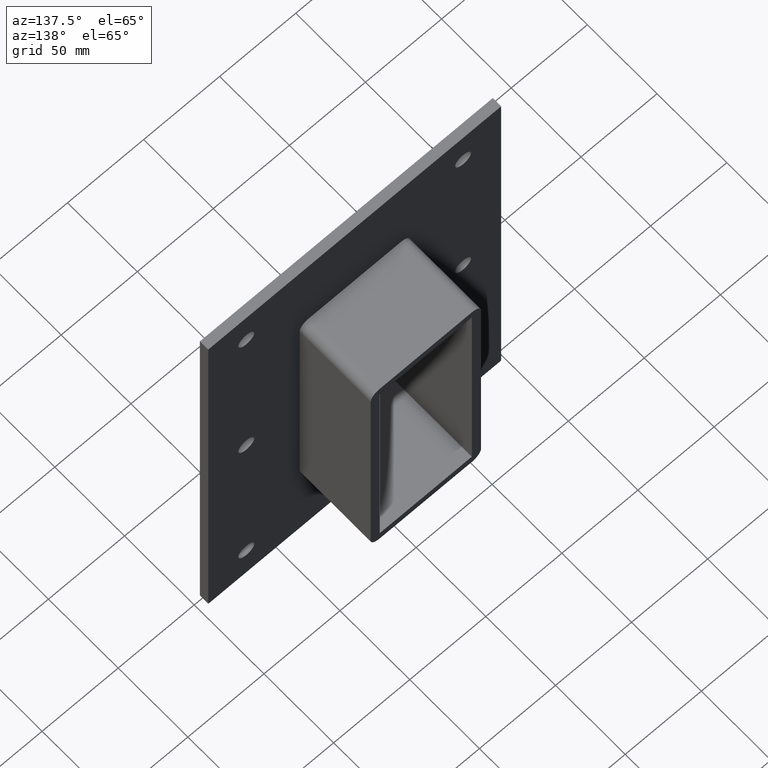
[diagram: clean part render]
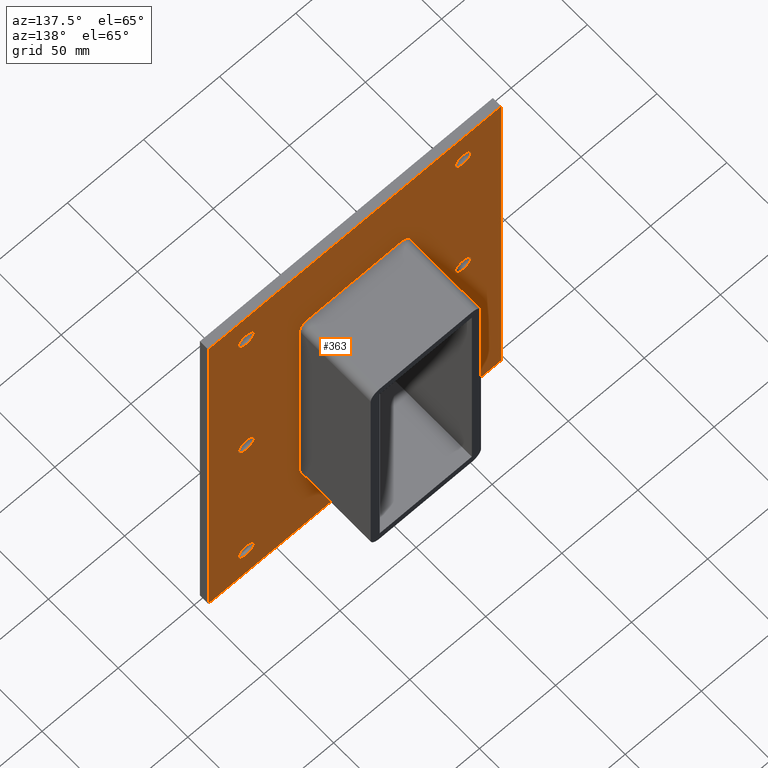
[diagram: same view with one face highlighted and labeled with its STEP entity id]
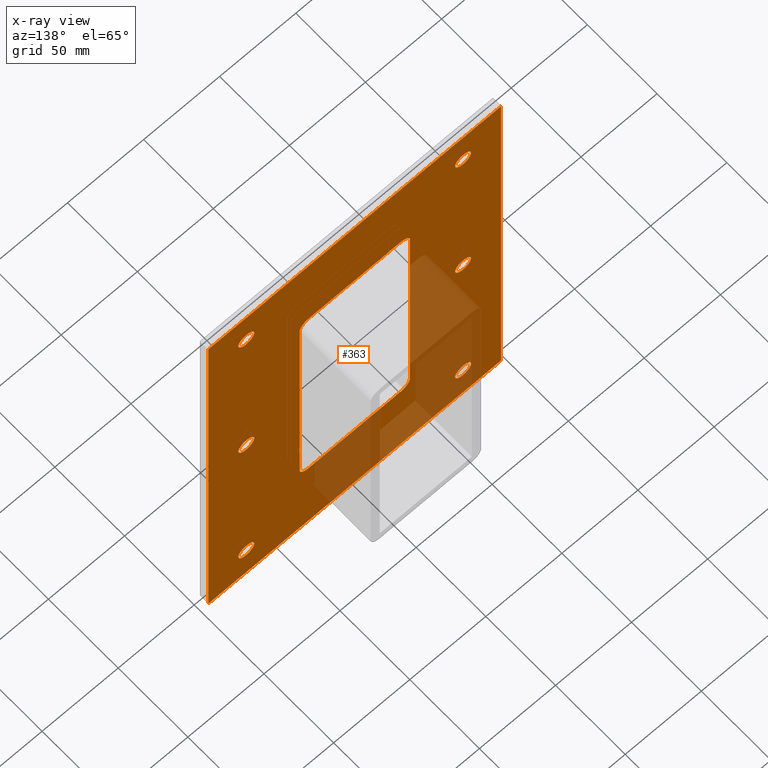
[diagram: x-ray of the same camera — body ghosted, the highlighted face saturated]
A machine part, auxiliary view. The second image highlights one B-rep face of the part: STEP entity #363.
The next image is the same camera in x-ray: the body ghosted, the highlighted face saturated — about 23% of this face is hidden behind the body in this view.
In plain terms, the highlighted planar face has unit normal (0, 1, 0).
Its self-contained STEP definition (entity closure, byte-faithful):
#73=CARTESIAN_POINT('',(-76.500000000000114,6.000000000000014,-120.75));
#74=VERTEX_POINT('',#73);
#75=CARTESIAN_POINT('',(-71.250000000000114,6.000000000000014,-120.75));
#76=DIRECTION('',(0.0,-1.0,0.0));
#77=DIRECTION('',(1.0,0.0,0.0));
#78=AXIS2_PLACEMENT_3D('',#75,#76,#77);
#79=CIRCLE('',#78,5.25);
#80=EDGE_CURVE('',#74,#74,#79,.T.);
#101=CARTESIAN_POINT('',(65.999999999999886,6.000000000000014,0.050000000000008));
#102=VERTEX_POINT('',#101);
#103=CARTESIAN_POINT('',(71.249999999999886,6.000000000000014,0.050000000000008));
#104=DIRECTION('',(0.0,-1.0,0.0));
#105=DIRECTION('',(1.0,0.0,0.0));
#106=AXIS2_PLACEMENT_3D('',#103,#104,#105);
#107=CIRCLE('',#106,5.25);
#108=EDGE_CURVE('',#102,#102,#107,.T.);
#129=CARTESIAN_POINT('',(-76.500000000000114,6.000000000000014,0.050000000000008));
#130=VERTEX_POINT('',#129);
#131=CARTESIAN_POINT('',(-71.250000000000114,6.000000000000014,0.050000000000008));
#132=DIRECTION('',(0.0,-1.0,0.0));
#133=DIRECTION('',(1.0,0.0,0.0));
#134=AXIS2_PLACEMENT_3D('',#131,#132,#133);
#135=CIRCLE('',#134,5.25);
#136=EDGE_CURVE('',#130,#130,#135,.T.);
#157=CARTESIAN_POINT('',(65.999999999999886,6.000000000000014,-120.75));
#158=VERTEX_POINT('',#157);
#159=CARTESIAN_POINT('',(71.249999999999886,6.000000000000014,-120.75));
#160=DIRECTION('',(0.0,-1.0,0.0));
#161=DIRECTION('',(1.0,0.0,0.0));
#162=AXIS2_PLACEMENT_3D('',#159,#160,#161);
#163=CIRCLE('',#162,5.25);
#164=EDGE_CURVE('',#158,#158,#163,.T.);
#185=CARTESIAN_POINT('',(-76.500000000000114,6.000000000000014,120.85000000000001));
#186=VERTEX_POINT('',#185);
#187=CARTESIAN_POINT('',(-71.250000000000114,6.000000000000014,120.85000000000001));
#188=DIRECTION('',(0.0,-1.0,0.0));
#189=DIRECTION('',(1.0,0.0,0.0));
#190=AXIS2_PLACEMENT_3D('',#187,#188,#189);
#191=CIRCLE('',#190,5.25);
#192=EDGE_CURVE('',#186,#186,#191,.T.);
#213=CARTESIAN_POINT('',(65.999999999999886,6.000000000000014,120.85000000000001));
#214=VERTEX_POINT('',#213);
#215=CARTESIAN_POINT('',(71.249999999999886,6.000000000000014,120.85000000000001));
#216=DIRECTION('',(0.0,-1.0,0.0));
#217=DIRECTION('',(1.0,0.0,0.0));
#218=AXIS2_PLACEMENT_3D('',#215,#216,#217);
#219=CIRCLE('',#218,5.25);
#220=EDGE_CURVE('',#214,#214,#219,.T.);
#236=CARTESIAN_POINT('',(-1.321257E-014,6.000000000000001,0.0));
#237=DIRECTION('',(0.0,1.0,0.0));
#238=DIRECTION('',(0.0,0.0,1.0));
#239=AXIS2_PLACEMENT_3D('',#236,#237,#238);
#240=PLANE('',#239);
#241=CARTESIAN_POINT('',(-96.25,6.000000000000001,145.74999999999997));
#242=VERTEX_POINT('',#241);
#243=CARTESIAN_POINT('',(96.25,6.000000000000001,145.74999999999997));
#244=VERTEX_POINT('',#243);
#245=CARTESIAN_POINT('',(-96.25,6.000000000000001,145.74999999999997));
#246=DIRECTION('',(1.0,0.0,0.0));
#247=VECTOR('',#246,192.5);
#248=LINE('',#245,#247);
#249=EDGE_CURVE('',#242,#244,#248,.T.);
#250=ORIENTED_EDGE('',*,*,#249,.T.);
#251=CARTESIAN_POINT('',(96.25,6.000000000000001,-145.74999999999997));
#252=VERTEX_POINT('',#251);
#253=CARTESIAN_POINT('',(96.249999999999986,6.000000000000001,145.74999999999997));
#254=DIRECTION('',(0.0,0.0,-1.0));
#255=VECTOR('',#254,291.49999999999994);
#256=LINE('',#253,#255);
#257=EDGE_CURVE('',#244,#252,#256,.T.);
#258=ORIENTED_EDGE('',*,*,#257,.T.);
#259=CARTESIAN_POINT('',(-96.25,6.000000000000001,-145.74999999999997));
#260=VERTEX_POINT('',#259);
#261=CARTESIAN_POINT('',(96.249999999999986,6.000000000000001,-145.74999999999997));
#262=DIRECTION('',(-1.0,0.0,0.0));
#263=VECTOR('',#262,192.5);
#264=LINE('',#261,#263);
#265=EDGE_CURVE('',#252,#260,#264,.T.);
#266=ORIENTED_EDGE('',*,*,#265,.T.);
#267=CARTESIAN_POINT('',(-96.25,6.000000000000001,-145.74999999999997));
#268=DIRECTION('',(0.0,0.0,1.0));
#269=VECTOR('',#268,291.49999999999994);
#270=LINE('',#267,#269);
#271=EDGE_CURVE('',#260,#242,#270,.T.);
#272=ORIENTED_EDGE('',*,*,#271,.T.);
#273=EDGE_LOOP('',(#250,#258,#266,#272));
#274=FACE_OUTER_BOUND('',#273,.T.);
#275=ORIENTED_EDGE('',*,*,#80,.T.);
#276=EDGE_LOOP('',(#275));
#277=FACE_BOUND('',#276,.T.);
#278=ORIENTED_EDGE('',*,*,#108,.T.);
#279=EDGE_LOOP('',(#278));
#280=FACE_BOUND('',#279,.T.);
#281=ORIENTED_EDGE('',*,*,#136,.T.);
#282=EDGE_LOOP('',(#281));
#283=FACE_BOUND('',#282,.T.);
#284=ORIENTED_EDGE('',*,*,#164,.T.);
#285=EDGE_LOOP('',(#284));
#286=FACE_BOUND('',#285,.T.);
#287=ORIENTED_EDGE('',*,*,#192,.T.);
#288=EDGE_LOOP('',(#287));
#289=FACE_BOUND('',#288,.T.);
#290=ORIENTED_EDGE('',*,*,#220,.T.);
#291=EDGE_LOOP('',(#290));
#292=FACE_BOUND('',#291,.T.);
#293=CARTESIAN_POINT('',(-36.25,6.000000000000001,79.750000000000043));
#294=VERTEX_POINT('',#293);
#295=CARTESIAN_POINT('',(-30.250000000000004,6.000000000000001,85.750000000000028));
#296=VERTEX_POINT('',#295);
#297=CARTESIAN_POINT('',(-30.250000000000004,6.000000000000001,79.750000000000043));
#298=DIRECTION('',(0.0,1.0,0.0));
#299=DIRECTION('',(-0.707106781186547,0.0,0.707106781186547));
#300=AXIS2_PLACEMENT_3D('',#297,#298,#299);
#301=CIRCLE('',#300,6.0);
#302=EDGE_CURVE('',#294,#296,#301,.T.);
#303=ORIENTED_EDGE('',*,*,#302,.F.);
#304=CARTESIAN_POINT('',(-36.25,6.000000000000001,-79.750000000000043));
#305=VERTEX_POINT('',#304);
#306=CARTESIAN_POINT('',(-36.25,6.000000000000001,-79.750000000000043));
#307=DIRECTION('',(0.0,0.0,1.0));
#308=VECTOR('',#307,159.50000000000006);
#309=LINE('',#306,#308);
#310=EDGE_CURVE('',#305,#294,#309,.T.);
#311=ORIENTED_EDGE('',*,*,#310,.F.);
#312=CARTESIAN_POINT('',(-30.250000000000004,6.000000000000001,-85.750000000000028));
#313=VERTEX_POINT('',#312);
#314=CARTESIAN_POINT('',(-30.250000000000004,6.000000000000001,-79.750000000000043));
#315=DIRECTION('',(0.0,1.0,0.0));
#316=DIRECTION('',(-0.707106781186547,0.0,-0.707106781186547));
#317=AXIS2_PLACEMENT_3D('',#314,#315,#316);
#318=CIRCLE('',#317,6.0);
#319=EDGE_CURVE('',#313,#305,#318,.T.);
#320=ORIENTED_EDGE('',*,*,#319,.F.);
#321=CARTESIAN_POINT('',(30.250000000000004,6.000000000000001,-85.750000000000028));
#322=VERTEX_POINT('',#321);
#323=CARTESIAN_POINT('',(30.250000000000004,6.000000000000001,-85.750000000000028));
#324=DIRECTION('',(-1.0,0.0,0.0));
#325=VECTOR('',#324,60.5);
#326=LINE('',#323,#325);
#327=EDGE_CURVE('',#322,#313,#326,.T.);
#328=ORIENTED_EDGE('',*,*,#327,.F.);
#329=CARTESIAN_POINT('',(36.25,6.000000000000001,-79.750000000000043));
#330=VERTEX_POINT('',#329);
#331=CARTESIAN_POINT('',(30.250000000000004,6.000000000000001,-79.750000000000043));
#332=DIRECTION('',(0.0,1.0,0.0));
#333=DIRECTION('',(0.707106781186547,0.0,-0.707106781186547));
#334=AXIS2_PLACEMENT_3D('',#331,#332,#333);
#335=CIRCLE('',#334,6.0);
#336=EDGE_CURVE('',#330,#322,#335,.T.);
#337=ORIENTED_EDGE('',*,*,#336,.F.);
#338=CARTESIAN_POINT('',(36.25,6.000000000000001,79.750000000000028));
#339=VERTEX_POINT('',#338);
#340=CARTESIAN_POINT('',(36.25,6.000000000000001,79.750000000000028));
#341=DIRECTION('',(0.0,0.0,-1.0));
#342=VECTOR('',#341,159.50000000000006);
#343=LINE('',#340,#342);
#344=EDGE_CURVE('',#339,#330,#343,.T.);
#345=ORIENTED_EDGE('',*,*,#344,.F.);
#346=CARTESIAN_POINT('',(30.250000000000004,6.000000000000001,85.750000000000028));
#347=VERTEX_POINT('',#346);
#348=CARTESIAN_POINT('',(30.250000000000004,6.000000000000001,79.750000000000028));
#349=DIRECTION('',(0.0,1.0,0.0));
#350=DIRECTION('',(0.707106781186548,0.0,0.707106781186547));
#351=AXIS2_PLACEMENT_3D('',#348,#349,#350);
#352=CIRCLE('',#351,6.0);
#353=EDGE_CURVE('',#347,#339,#352,.T.);
#354=ORIENTED_EDGE('',*,*,#353,.F.);
#355=CARTESIAN_POINT('',(-30.250000000000004,6.000000000000001,85.750000000000028));
#356=DIRECTION('',(1.0,0.0,0.0));
#357=VECTOR('',#356,60.500000000000014);
#358=LINE('',#355,#357);
#359=EDGE_CURVE('',#296,#347,#358,.T.);
#360=ORIENTED_EDGE('',*,*,#359,.F.);
#361=EDGE_LOOP('',(#303,#311,#320,#328,#337,#345,#354,#360));
#362=FACE_BOUND('',#361,.T.);
#363=ADVANCED_FACE('',(#274,#277,#280,#283,#286,#289,#292,#362),#240,.T.);